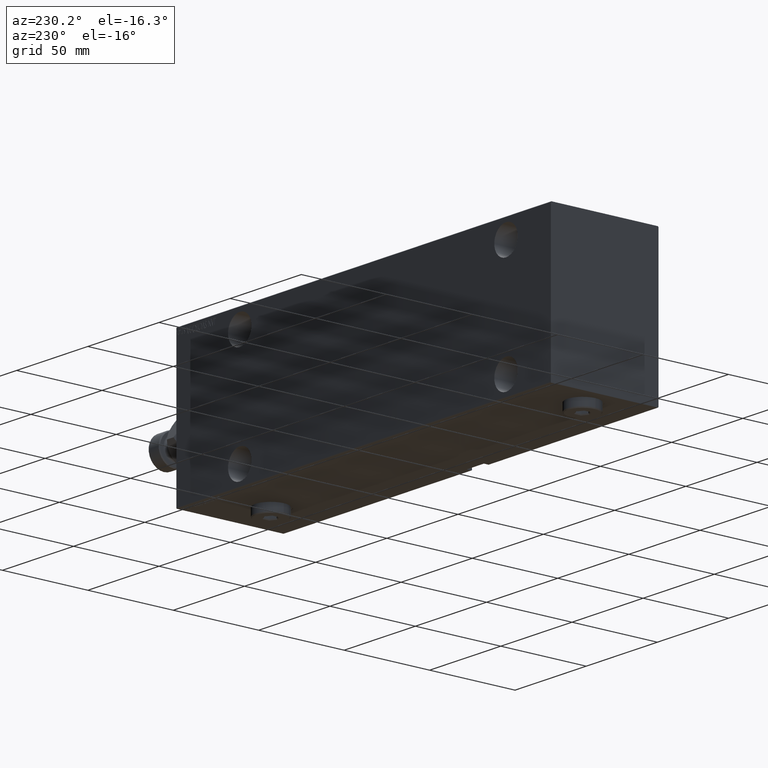
[diagram: clean part render]
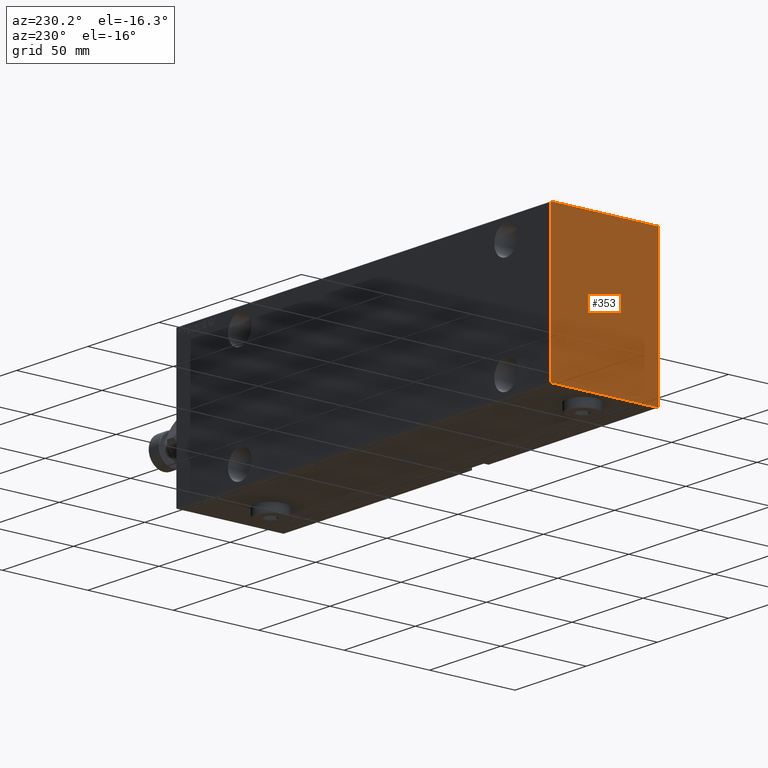
[diagram: same view with one face highlighted and labeled with its STEP entity id]
A machine part, auxiliary view. The second image highlights one B-rep face of the part: STEP entity #353.
In plain terms, the highlighted planar face has unit normal (-1, 0, 0).
Its self-contained STEP definition (entity closure, byte-faithful):
#353 = ADVANCED_FACE ( 'NONE', ( #18658 ), #36590, .T. ) ;
#719 = ORIENTED_EDGE ( 'NONE', *, *, #26366, .T. ) ;
#806 = ORIENTED_EDGE ( 'NONE', *, *, #13059, .T. ) ;
#1785 = VECTOR ( 'NONE', #41414, 1000.000000000000114 ) ;
#3324 = VECTOR ( 'NONE', #37604, 1000.000000000000000 ) ;
#5285 = LINE ( 'NONE', #12031, #3324 ) ;
#6125 = LINE ( 'NONE', #20301, #7432 ) ;
#7432 = VECTOR ( 'NONE', #44736, 1000.000000000000000 ) ;
#7634 = EDGE_CURVE ( 'NONE', #27531, #7830, #18515, .T. ) ;
#7727 = LINE ( 'NONE', #35652, #46052 ) ;
#7830 = VERTEX_POINT ( 'NONE', #14426 ) ;
#8824 = VERTEX_POINT ( 'NONE', #28604 ) ;
#8917 = DIRECTION ( 'NONE',  ( 0.000000000000000000, -1.000000000000000000, -2.202823461557850341E-16 ) ) ;
#11493 = CARTESIAN_POINT ( 'NONE',  ( 263.0000000000000000, -31.49999999999999289, 42.19999999999993889 ) ) ;
#11900 = EDGE_CURVE ( 'NONE', #17382, #27531, #6125, .T. ) ;
#12031 = CARTESIAN_POINT ( 'NONE',  ( 263.0000000000000000, -31.49999999999999289, 42.49999999999998579 ) ) ;
#12568 = LINE ( 'NONE', #20460, #1785 ) ;
#12803 = CARTESIAN_POINT ( 'NONE',  ( 263.0000000000000000, -31.19999999999997797, 42.49999999999998579 ) ) ;
#13059 = EDGE_CURVE ( 'NONE', #44103, #17382, #44279, .T. ) ;
#14130 = EDGE_LOOP ( 'NONE', ( #30333, #28673, #29691, #32359, #719, #36840, #22141, #806 ) ) ;
#14426 = CARTESIAN_POINT ( 'NONE',  ( 263.0000000000000000, 31.50000000000001421, -42.20000000000001705 ) ) ;
#14948 = CARTESIAN_POINT ( 'NONE',  ( 263.0000000000000000, 0.000000000000000000, 0.000000000000000000 ) ) ;
#15265 = DIRECTION ( 'NONE',  ( -0.000000000000000000, 0.7071067811865556774, 0.7071067811865393571 ) ) ;
#16239 = CARTESIAN_POINT ( 'NONE',  ( 263.0000000000000000, -31.49999999999999289, -42.20000000000000995 ) ) ;
#16569 = EDGE_CURVE ( 'NONE', #16637, #40220, #12568, .T. ) ;
#16637 = VERTEX_POINT ( 'NONE', #12803 ) ;
#17113 = VECTOR ( 'NONE', #40080, 1000.000000000000000 ) ;
#17382 = VERTEX_POINT ( 'NONE', #31076 ) ;
#18515 = LINE ( 'NONE', #22484, #39503 ) ;
#18658 = FACE_OUTER_BOUND ( 'NONE', #14130, .T. ) ;
#19980 = EDGE_CURVE ( 'NONE', #40220, #44103, #5285, .T. ) ;
#20059 = VECTOR ( 'NONE', #44062, 1000.000000000000000 ) ;
#20301 = CARTESIAN_POINT ( 'NONE',  ( 263.0000000000000000, -31.49999999999999289, -42.50000000000000711 ) ) ;
#20460 = CARTESIAN_POINT ( 'NONE',  ( 263.0000000000000000, -36.85000000000179199, 36.84999999999753584 ) ) ;
#21929 = DIRECTION ( 'NONE',  ( 1.000000000000000000, 0.000000000000000000, 0.000000000000000000 ) ) ;
#22141 = ORIENTED_EDGE ( 'NONE', *, *, #19980, .T. ) ;
#22484 = CARTESIAN_POINT ( 'NONE',  ( 263.0000000000000000, 36.84999999999964615, -36.85000000000049880 ) ) ;
#26146 = CARTESIAN_POINT ( 'NONE',  ( 263.0000000000000000, 31.50000000000001421, -42.50000000000000711 ) ) ;
#26366 = EDGE_CURVE ( 'NONE', #8824, #16637, #36848, .T. ) ;
#26830 = LINE ( 'NONE', #26146, #17113 ) ;
#27531 = VERTEX_POINT ( 'NONE', #28074 ) ;
#28074 = CARTESIAN_POINT ( 'NONE',  ( 263.0000000000000000, 31.20000000000001350, -42.50000000000000711 ) ) ;
#28190 = VERTEX_POINT ( 'NONE', #41432 ) ;
#28604 = CARTESIAN_POINT ( 'NONE',  ( 263.0000000000000000, 31.19999999999994955, 42.50000000000000000 ) ) ;
#28673 = ORIENTED_EDGE ( 'NONE', *, *, #7634, .T. ) ;
#29691 = ORIENTED_EDGE ( 'NONE', *, *, #38564, .T. ) ;
#30333 = ORIENTED_EDGE ( 'NONE', *, *, #11900, .T. ) ;
#31076 = CARTESIAN_POINT ( 'NONE',  ( 263.0000000000000000, -31.19999999999999929, -42.50000000000000711 ) ) ;
#32164 = DIRECTION ( 'NONE',  ( -0.000000000000000000, -0.7071067811865884289, 0.7071067811865066055 ) ) ;
#32359 = ORIENTED_EDGE ( 'NONE', *, *, #36586, .T. ) ;
#33921 = VECTOR ( 'NONE', #8917, 1000.000000000000000 ) ;
#35652 = CARTESIAN_POINT ( 'NONE',  ( 263.0000000000000000, 36.84999999999817533, 36.85000000000243858 ) ) ;
#36586 = EDGE_CURVE ( 'NONE', #28190, #8824, #7727, .T. ) ;
#36590 = PLANE ( 'NONE',  #45659 ) ;
#36840 = ORIENTED_EDGE ( 'NONE', *, *, #16569, .T. ) ;
#36848 = LINE ( 'NONE', #43821, #33921 ) ;
#37604 = DIRECTION ( 'NONE',  ( 0.000000000000000000, 0.000000000000000000, -1.000000000000000000 ) ) ;
#38564 = EDGE_CURVE ( 'NONE', #7830, #28190, #26830, .T. ) ;
#39503 = VECTOR ( 'NONE', #15265, 1000.000000000000000 ) ;
#39827 = DIRECTION ( 'NONE',  ( 0.000000000000000000, 0.000000000000000000, -1.000000000000000000 ) ) ;
#40080 = DIRECTION ( 'NONE',  ( 0.000000000000000000, -1.632680918566406300E-16, 1.000000000000000000 ) ) ;
#40220 = VERTEX_POINT ( 'NONE', #11493 ) ;
#41259 = CARTESIAN_POINT ( 'NONE',  ( 263.0000000000000000, -36.85000000000036380, -36.84999999999951115 ) ) ;
#41414 = DIRECTION ( 'NONE',  ( 0.000000000000000000, -0.7071067811865066055, -0.7071067811865884289 ) ) ;
#41432 = CARTESIAN_POINT ( 'NONE',  ( 263.0000000000000000, 31.50000000000000000, 42.19999999999998863 ) ) ;
#43821 = CARTESIAN_POINT ( 'NONE',  ( 263.0000000000000000, 31.50000000000000000, 42.50000000000000000 ) ) ;
#44062 = DIRECTION ( 'NONE',  ( -0.000000000000000000, 0.7071067811865393571, -0.7071067811865556774 ) ) ;
#44103 = VERTEX_POINT ( 'NONE', #16239 ) ;
#44279 = LINE ( 'NONE', #41259, #20059 ) ;
#44736 = DIRECTION ( 'NONE',  ( 0.000000000000000000, 1.000000000000000000, 0.000000000000000000 ) ) ;
#45659 = AXIS2_PLACEMENT_3D ( 'NONE', #14948, #21929, #39827 ) ;
#46052 = VECTOR ( 'NONE', #32164, 1000.000000000000114 ) ;